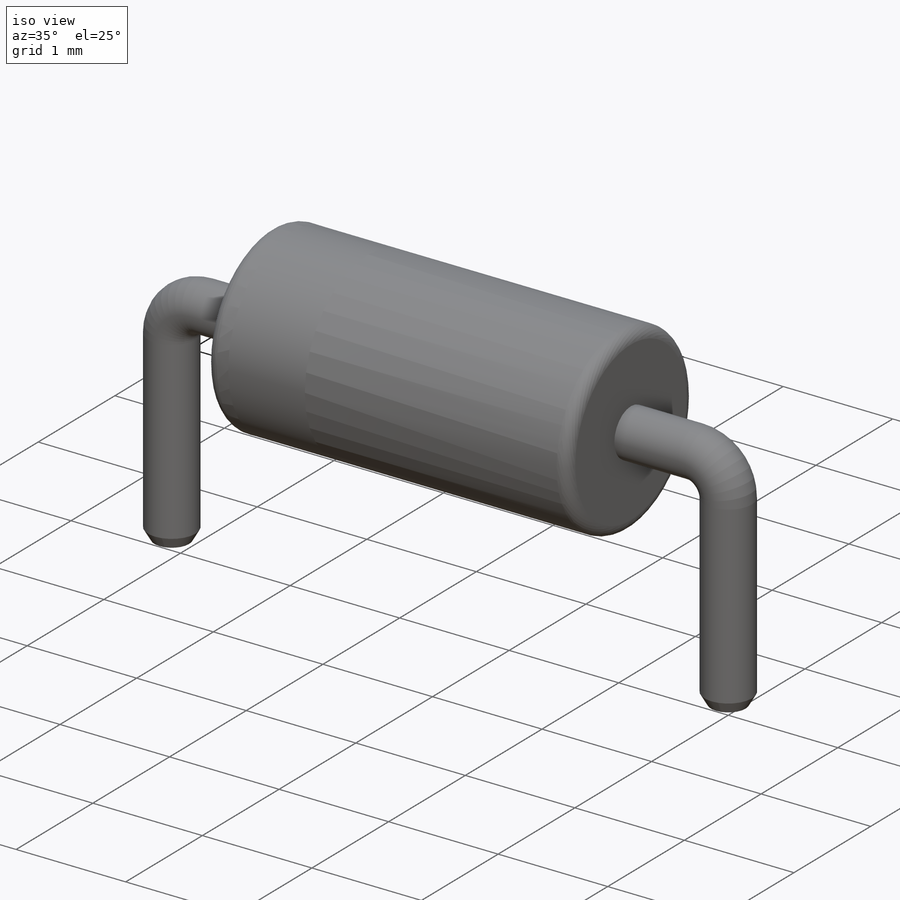
[diagram: iso view]
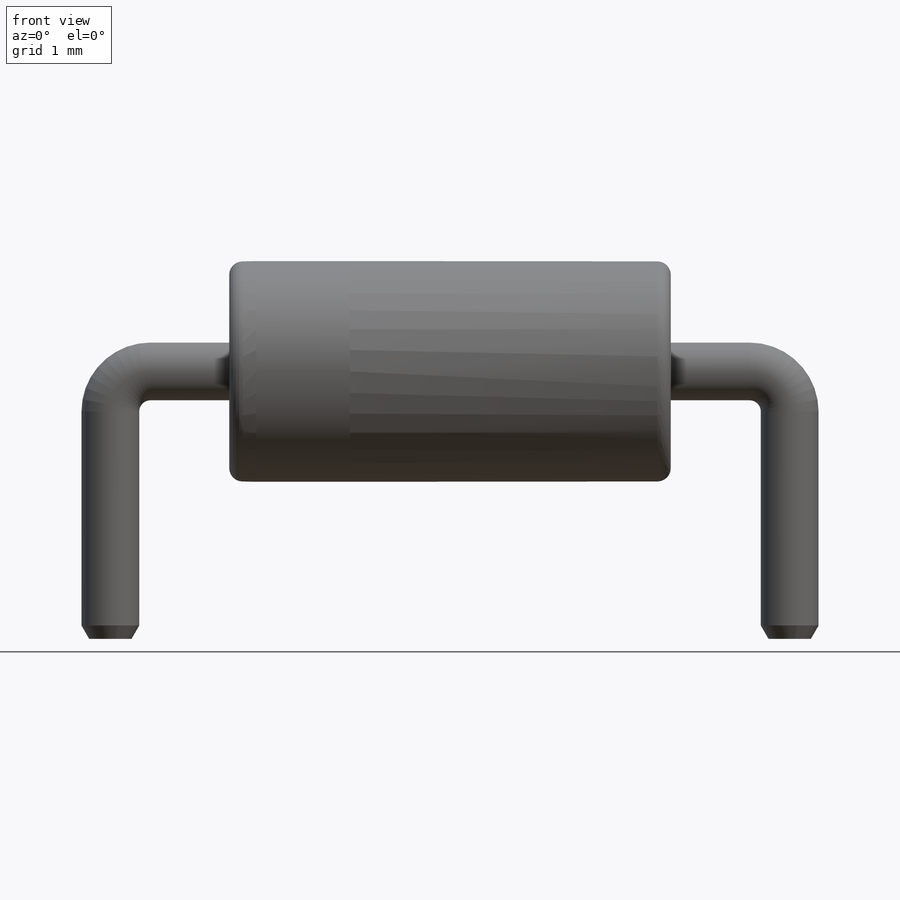
[diagram: front view]
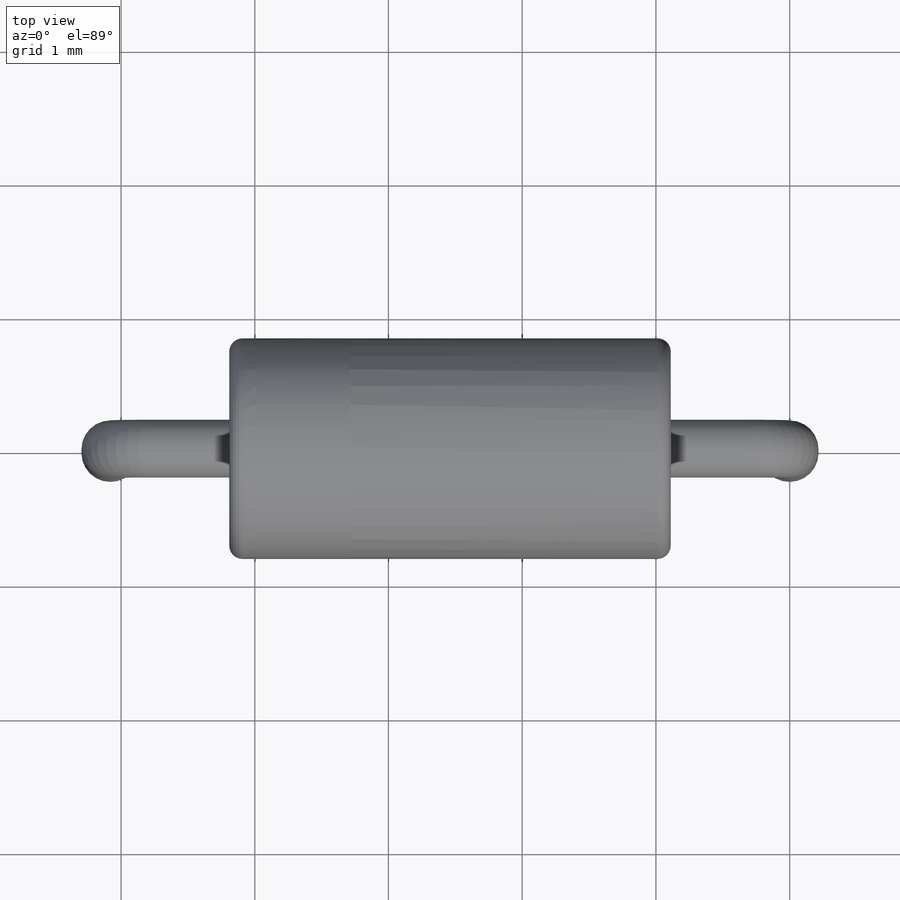
[diagram: top view]
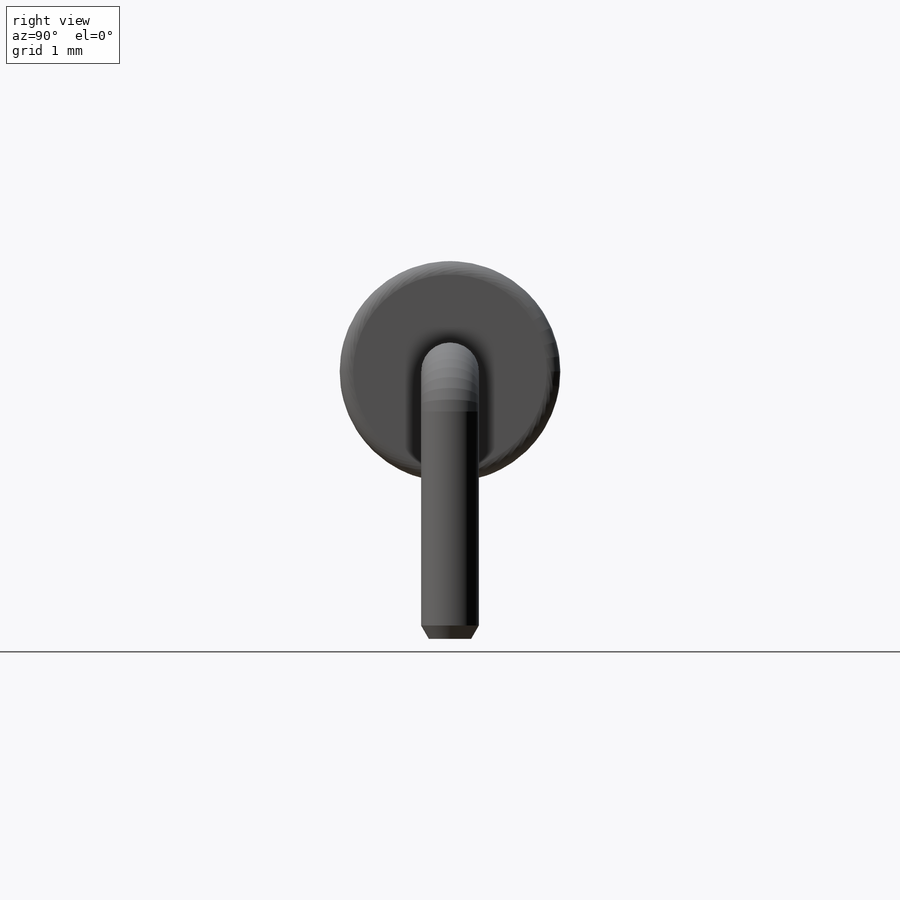
[diagram: right view]
SOLIDWORKS PART (.sldprt)
format: sldprt  version: not decoded by parser v0  size: 185,344 bytes
history: native  units: mm
features: sketch x6, material x1, sweep x1, extrude x1, fillet x1, chamfer x1 (+16 scaffold rows collapsed)
feature tree (27):
  scaffold x16  (default folders/planes/origin — collapsed)
  material  "Material <not specified>"
  sketch  "Sketch1"  dims[D1=0.4318mm]
  sketch  "Sketch2"  dims[D4=0.1mm D1=1.0mm D2=2.0mm D3=5.08mm]
  sweep  "Sweep1"
  sketch  "3DSketch2"  dims[D1=0.889mm]
  sketch  "Sketch3"  dims[D1=1.65mm]
  extrude  "Extrude1"  Depth=3.302mm
  fillet  "Fillet1"  Radius=0.1mm
  chamfer  "Chamfer1"  Distance=0.1mm Angle=30deg
  sketch  "3DSketch3"  dims[D1=2.0mm]
  sketch  "Sketch4"  dims[D1=0.7mm]
decode coverage: 9 of 10 modeling features carry decoded parameters
note: suppression state not decoded; provenance and decode notes live in map.json
